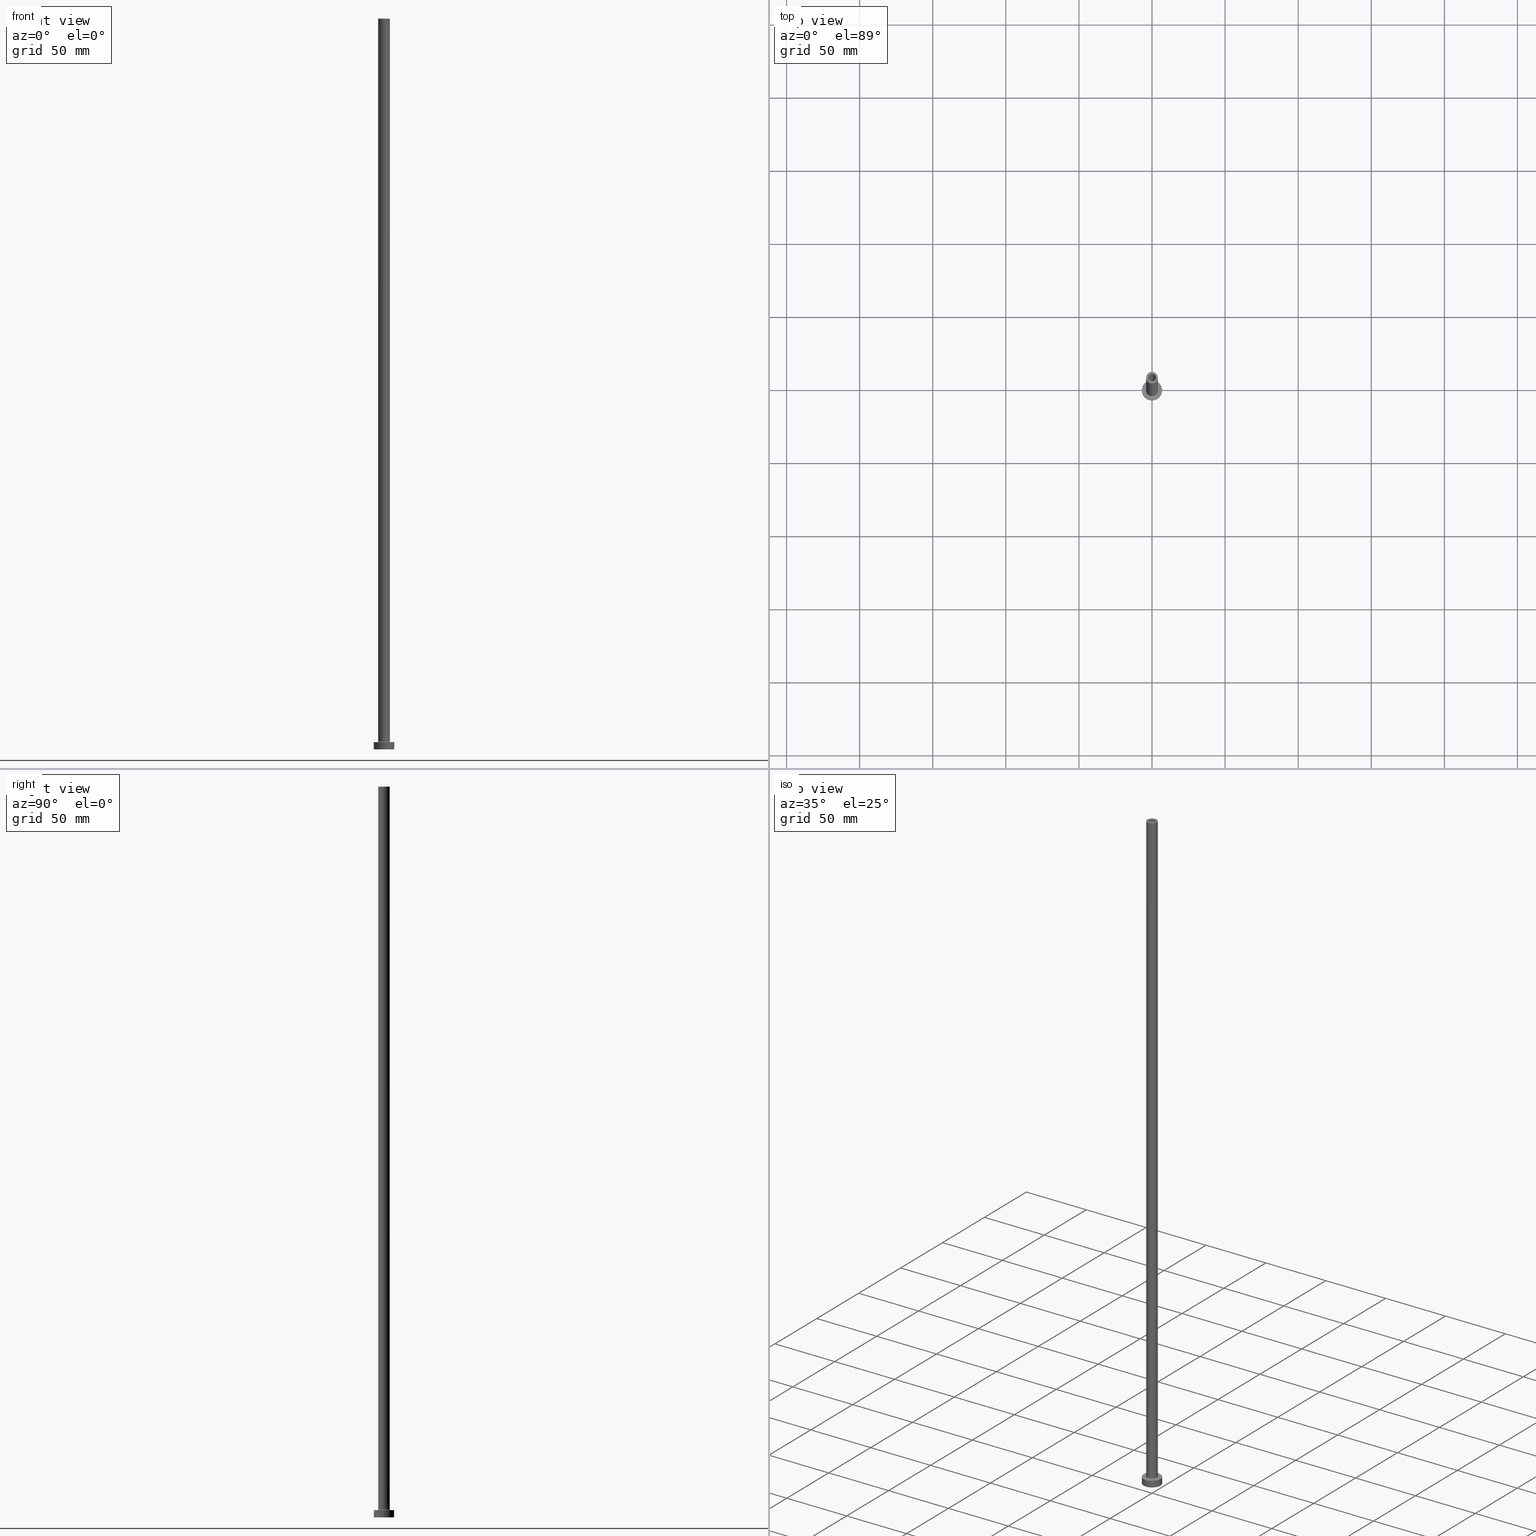
[diagram: canonical four-view strip — front | top / right | iso, engineering-drawing reading convention]
A machine part, canonical four-view strip (front | top / right | iso — engineering-drawing reading convention). The complete STEP part file that produces these views, byte-faithful:
ISO-10303-21;
HEADER;
FILE_DESCRIPTION (( 'STEP AP203' ),
    '1' );
FILE_NAME ('65d1.STEP',
    '2023-02-13T16:28:41',
    ( '' ),
    ( '' ),
    'SwSTEP 2.0',
    'SolidWorks 2019',
    '' );
FILE_SCHEMA (( 'CONFIG_CONTROL_DESIGN' ));
ENDSEC;

DATA;
#1 = EDGE_CURVE ( 'NONE', #309, #140, #42, .T. ) ;
#2 = CARTESIAN_POINT ( 'NONE',  ( 0.000000000000000000, 0.000000000000000000, 455.0000000000000000 ) ) ;
#3 = CARTESIAN_POINT ( 'NONE',  ( 0.000000000000000000, 0.000000000000000000, 500.0000000000000000 ) ) ;
#4 = CC_DESIGN_APPROVAL ( #315, ( #286 ) ) ;
#5 = AXIS2_PLACEMENT_3D ( 'NONE', #387, #212, #395 ) ;
#6 = APPROVAL_DATE_TIME ( #114, #89 ) ;
#7 = CARTESIAN_POINT ( 'NONE',  ( -2.600000000000000089, 0.000000000000000000, 455.0000000000000000 ) ) ;
#8 = VERTEX_POINT ( 'NONE', #458 ) ;
#9 = DIRECTION ( 'NONE',  ( 0.000000000000000000, 0.000000000000000000, 1.000000000000000000 ) ) ;
#10 = DESIGN_CONTEXT ( 'detailed design', #323, 'design' ) ;
#11 = CIRCLE ( 'NONE', #328, 2.600000000000000089 ) ;
#12 = COORDINATED_UNIVERSAL_TIME_OFFSET ( 1, 0, .AHEAD. ) ;
#13 = PLANE ( 'NONE',  #119 ) ;
#14 = EDGE_CURVE ( 'NONE', #39, #447, #172, .T. ) ;
#15 = ORIENTED_EDGE ( 'NONE', *, *, #406, .F. ) ;
#16 = ORIENTED_EDGE ( 'NONE', *, *, #21, .F. ) ;
#17 = DIRECTION ( 'NONE',  ( -1.000000000000000000, 0.000000000000000000, 0.000000000000000000 ) ) ;
#18 = ADVANCED_FACE ( 'NONE', ( #207 ), #211, .F. ) ;
#19 = DIRECTION ( 'NONE',  ( -1.000000000000000000, 0.000000000000000000, 0.000000000000000000 ) ) ;
#20 = FACE_BOUND ( 'NONE', #138, .T. ) ;
#21 = EDGE_CURVE ( 'NONE', #8, #344, #436, .T. ) ;
#22 = AXIS2_PLACEMENT_3D ( 'NONE', #343, #204, #388 ) ;
#23 = AXIS2_PLACEMENT_3D ( 'NONE', #362, #370, #226 ) ;
#24 = ORIENTED_EDGE ( 'NONE', *, *, #171, .F. ) ;
#25 = ORIENTED_EDGE ( 'NONE', *, *, #428, .T. ) ;
#26 = ADVANCED_FACE ( 'NONE', ( #288 ), #94, .F. ) ;
#27 = DIRECTION ( 'NONE',  ( 0.000000000000000000, 0.000000000000000000, 1.000000000000000000 ) ) ;
#28 = VECTOR ( 'NONE', #237, 1000.000000000000000 ) ;
#29 = DIRECTION ( 'NONE',  ( 1.000000000000000000, 0.000000000000000000, -0.000000000000000000 ) ) ;
#30 = VECTOR ( 'NONE', #194, 1000.000000000000000 ) ;
#31 = ORIENTED_EDGE ( 'NONE', *, *, #87, .F. ) ;
#32 = DIRECTION ( 'NONE',  ( 0.000000000000000000, 0.000000000000000000, -1.000000000000000000 ) ) ;
#33 = ORIENTED_EDGE ( 'NONE', *, *, #21, .T. ) ;
#34 = DIRECTION ( 'NONE',  ( 0.000000000000000000, -1.000000000000000000, 0.000000000000000000 ) ) ;
#35 = CYLINDRICAL_SURFACE ( 'NONE', #227, 4.000000000000000000 ) ;
#36 = ORIENTED_EDGE ( 'NONE', *, *, #407, .T. ) ;
#37 = CC_DESIGN_PERSON_AND_ORGANIZATION_ASSIGNMENT ( #403, #368, ( #159 ) ) ;
#38 = DIRECTION ( 'NONE',  ( 0.000000000000000000, 0.000000000000000000, -1.000000000000000000 ) ) ;
#39 = VERTEX_POINT ( 'NONE', #374 ) ;
#40 = CALENDAR_DATE ( 2023, 13, 2 ) ;
#41 = VECTOR ( 'NONE', #357, 1000.000000000000000 ) ;
#42 = CIRCLE ( 'NONE', #426, 2.750000000000000000 ) ;
#43 = ORIENTED_EDGE ( 'NONE', *, *, #79, .F. ) ;
#44 = MECHANICAL_CONTEXT ( 'NONE', #192, 'mechanical' ) ;
#45 = DATE_TIME_ROLE ( 'creation_date' ) ;
#46 = SECURITY_CLASSIFICATION_LEVEL ( 'unclassified' ) ;
#47 = ORGANIZATION ( 'NEUR�EN�', 'NEUR�EN�', '' ) ;
#48 = AXIS2_PLACEMENT_3D ( 'NONE', #310, #34, #38 ) ;
#49 = PERSON_AND_ORGANIZATION ( #156, #47 ) ;
#50 = ORIENTED_EDGE ( 'NONE', *, *, #81, .T. ) ;
#51 = ORIENTED_EDGE ( 'NONE', *, *, #87, .T. ) ;
#52 = AXIS2_PLACEMENT_3D ( 'NONE', #3, #27, #29 ) ;
#53 = CARTESIAN_POINT ( 'NONE',  ( 7.000000000000000000, 8.572527594031473190E-16, 5.000000000000000000 ) ) ;
#54 = PLANE ( 'NONE',  #235 ) ;
#55 = DIRECTION ( 'NONE',  ( 1.000000000000000000, 0.000000000000000000, 0.000000000000000000 ) ) ;
#56 = DIRECTION ( 'NONE',  ( -0.000000000000000000, -0.000000000000000000, -1.000000000000000000 ) ) ;
#57 = EDGE_LOOP ( 'NONE', ( #432, #16 ) ) ;
#58 = AXIS2_PLACEMENT_3D ( 'NONE', #355, #316, #128 ) ;
#59 = CARTESIAN_POINT ( 'NONE',  ( 2.600000000000000089, 3.184081677783117698E-16, 500.0000000000000000 ) ) ;
#60 = MANIFOLD_SOLID_BREP ( 'Odebrat vysunut�m4', #144 ) ;
#61 = DIRECTION ( 'NONE',  ( 1.000000000000000000, 0.000000000000000000, 0.000000000000000000 ) ) ;
#62 = CARTESIAN_POINT ( 'NONE',  ( 7.000000000000000000, 8.572527594031473190E-16, 5.000000000000000000 ) ) ;
#63 = FACE_BOUND ( 'NONE', #399, .T. ) ;
#64 = ORIENTED_EDGE ( 'NONE', *, *, #255, .F. ) ;
#65 = FACE_BOUND ( 'NONE', #102, .T. ) ;
#66 = AXIS2_PLACEMENT_3D ( 'NONE', #263, #228, #19 ) ;
#67 = CARTESIAN_POINT ( 'NONE',  ( 0.000000000000000000, 0.000000000000000000, 5.000000000000000000 ) ) ;
#68 = CIRCLE ( 'NONE', #149, 7.000000000000000000 ) ;
#69 = VERTEX_POINT ( 'NONE', #77 ) ;
#70 = DIRECTION ( 'NONE',  ( -0.000000000000000000, -0.000000000000000000, -1.000000000000000000 ) ) ;
#71 = ADVANCED_FACE ( 'NONE', ( #256 ), #154, .T. ) ;
#72 = DIRECTION ( 'NONE',  ( -0.000000000000000000, -0.000000000000000000, -1.000000000000000000 ) ) ;
#73 = APPROVAL_STATUS ( 'not_yet_approved' ) ;
#74 = ORIENTED_EDGE ( 'NONE', *, *, #98, .F. ) ;
#75 = ADVANCED_FACE ( 'NONE', ( #91, #160 ), #13, .F. ) ;
#76 = EDGE_LOOP ( 'NONE', ( #248, #50, #456, #363 ) ) ;
#77 = CARTESIAN_POINT ( 'NONE',  ( -7.000000000000000000, 0.000000000000000000, 5.000000000000000000 ) ) ;
#78 =( NAMED_UNIT ( * ) SI_UNIT ( $, .STERADIAN. ) SOLID_ANGLE_UNIT ( ) );
#79 = EDGE_CURVE ( 'NONE', #205, #260, #133, .T. ) ;
#80 = PERSON_AND_ORGANIZATION ( #156, #47 ) ;
#81 = EDGE_CURVE ( 'NONE', #354, #224, #158, .T. ) ;
#82 = VECTOR ( 'NONE', #32, 1000.000000000000000 ) ;
#83 = CIRCLE ( 'NONE', #127, 2.600000000000000089 ) ;
#84 = VERTEX_POINT ( 'NONE', #53 ) ;
#85 = LINE ( 'NONE', #230, #30 ) ;
#86 = CARTESIAN_POINT ( 'NONE',  ( 0.000000000000000000, 0.000000000000000000, 462.7781745930519719 ) ) ;
#87 = EDGE_CURVE ( 'NONE', #84, #69, #68, .T. ) ;
#88 = CARTESIAN_POINT ( 'NONE',  ( 0.000000000000000000, 0.000000000000000000, 5.000000000000000000 ) ) ;
#89 = APPROVAL ( #179, 'NEUR�EN�' ) ;
#90 = DIRECTION ( 'NONE',  ( 0.000000000000000000, 0.000000000000000000, 1.000000000000000000 ) ) ;
#91 = FACE_BOUND ( 'NONE', #113, .T. ) ;
#92 = ORIENTED_EDGE ( 'NONE', *, *, #451, .T. ) ;
#93 = ORIENTED_EDGE ( 'NONE', *, *, #79, .T. ) ;
#94 = CYLINDRICAL_SURFACE ( 'NONE', #208, 2.750000000000000000 ) ;
#95 = VERTEX_POINT ( 'NONE', #161 ) ;
#96 = VERTEX_POINT ( 'NONE', #294 ) ;
#97 = AXIS2_PLACEMENT_3D ( 'NONE', #283, #169, #348 ) ;
#98 = EDGE_CURVE ( 'NONE', #453, #260, #125, .T. ) ;
#99 = CARTESIAN_POINT ( 'NONE',  ( 2.750000000000000000, 3.367778697655221012E-16, 462.7781745930519719 ) ) ;
#100 = CARTESIAN_POINT ( 'NONE',  ( 0.000000000000000000, 0.000000000000000000, 500.0000000000000000 ) ) ;
#101 = DIRECTION ( 'NONE',  ( 1.000000000000000000, 0.000000000000000000, -0.000000000000000000 ) ) ;
#102 = EDGE_LOOP ( 'NONE', ( #234, #404 ) ) ;
#103 = LINE ( 'NONE', #243, #28 ) ;
#104 = CARTESIAN_POINT ( 'NONE',  ( -2.750000000000000000, 0.000000000000000000, 455.0000000000000000 ) ) ;
#105 = CARTESIAN_POINT ( 'NONE',  ( -7.000000000000000000, 0.000000000000000000, 5.000000000000000000 ) ) ;
#106 = CIRCLE ( 'NONE', #367, 7.000000000000000000 ) ;
#107 = DIRECTION ( 'NONE',  ( 1.000000000000000000, 0.000000000000000000, 0.000000000000000000 ) ) ;
#108 = DIRECTION ( 'NONE',  ( 1.000000000000000000, 0.000000000000000000, -0.000000000000000000 ) ) ;
#109 = ORIENTED_EDGE ( 'NONE', *, *, #117, .T. ) ;
#110 = CARTESIAN_POINT ( 'NONE',  ( 0.000000000000000000, 0.000000000000000000, 500.0000000000000000 ) ) ;
#111 = DIRECTION ( 'NONE',  ( 0.000000000000000000, 0.000000000000000000, 1.000000000000000000 ) ) ;
#112 = EDGE_CURVE ( 'NONE', #224, #140, #85, .T. ) ;
#113 = EDGE_LOOP ( 'NONE', ( #277, #238 ) ) ;
#114 = DATE_AND_TIME ( #321, #249 ) ;
#115 = COORDINATED_UNIVERSAL_TIME_OFFSET ( 1, 0, .AHEAD. ) ;
#116 = APPROVAL_ROLE ( '' ) ;
#117 = EDGE_CURVE ( 'NONE', #166, #205, #167, .T. ) ;
#118 = PERSON_AND_ORGANIZATION_ROLE ( 'design_supplier' ) ;
#119 = AXIS2_PLACEMENT_3D ( 'NONE', #254, #218, #108 ) ;
#120 = DIRECTION ( 'NONE',  ( -0.000000000000000000, -0.000000000000000000, -1.000000000000000000 ) ) ;
#121 = CARTESIAN_POINT ( 'NONE',  ( 0.000000000000000000, 0.000000000000000000, 5.500000000000005329 ) ) ;
#122 = ORIENTED_EDGE ( 'NONE', *, *, #396, .F. ) ;
#123 = CC_DESIGN_DATE_AND_TIME_ASSIGNMENT ( #325, #152, ( #452 ) ) ;
#124 = CYLINDRICAL_SURFACE ( 'NONE', #66, 7.000000000000000000 ) ;
#125 = LINE ( 'NONE', #299, #410 ) ;
#126 = CIRCLE ( 'NONE', #435, 0.5000000000000004441 ) ;
#127 = AXIS2_PLACEMENT_3D ( 'NONE', #110, #351, #356 ) ;
#128 = DIRECTION ( 'NONE',  ( -1.000000000000000000, 0.000000000000000000, 0.000000000000000000 ) ) ;
#129 = LINE ( 'NONE', #99, #82 ) ;
#130 = VECTOR ( 'NONE', #72, 1000.000000000000000 ) ;
#131 = DIRECTION ( 'NONE',  ( -0.000000000000000000, -0.000000000000000000, -1.000000000000000000 ) ) ;
#132 = DIRECTION ( 'NONE',  ( -1.000000000000000000, 0.000000000000000000, 0.000000000000000000 ) ) ;
#133 = CIRCLE ( 'NONE', #23, 2.600000000000000089 ) ;
#134 = CARTESIAN_POINT ( 'NONE',  ( 0.000000000000000000, 0.000000000000000000, 0.000000000000000000 ) ) ;
#135 = ORIENTED_EDGE ( 'NONE', *, *, #446, .T. ) ;
#136 = CARTESIAN_POINT ( 'NONE',  ( 0.000000000000000000, 0.000000000000000000, 5.000000000000000000 ) ) ;
#137 = CARTESIAN_POINT ( 'NONE',  ( 0.000000000000000000, 0.000000000000000000, 0.000000000000000000 ) ) ;
#138 = EDGE_LOOP ( 'NONE', ( #93, #253 ) ) ;
#139 = DIRECTION ( 'NONE',  ( -0.000000000000000000, -0.000000000000000000, -1.000000000000000000 ) ) ;
#140 = VERTEX_POINT ( 'NONE', #295 ) ;
#141 = ADVANCED_FACE ( 'NONE', ( #165 ), #440, .T. ) ;
#142 = LOCAL_TIME ( 17, 28, 41.00000000000000000, #12 ) ;
#143 = DIRECTION ( 'NONE',  ( -0.000000000000000000, -0.000000000000000000, -1.000000000000000000 ) ) ;
#144 = CLOSED_SHELL ( 'NONE', ( #18, #379, #153, #266, #141, #259, #215, #75, #71, #360, #229, #26, #223, #145 ) ) ;
#145 = ADVANCED_FACE ( 'NONE', ( #273 ), #417, .F. ) ;
#146 = DIRECTION ( 'NONE',  ( 0.000000000000000000, 0.000000000000000000, 1.000000000000000000 ) ) ;
#147 = PERSON_AND_ORGANIZATION ( #156, #47 ) ;
#148 = CIRCLE ( 'NONE', #335, 2.600000000000000089 ) ;
#149 = AXIS2_PLACEMENT_3D ( 'NONE', #445, #439, #55 ) ;
#150 = EDGE_CURVE ( 'NONE', #453, #166, #83, .T. ) ;
#151 = ORIENTED_EDGE ( 'NONE', *, *, #324, .F. ) ;
#152 = DATE_TIME_ROLE ( 'classification_date' ) ;
#153 = ADVANCED_FACE ( 'NONE', ( #168 ), #416, .F. ) ;
#154 = CYLINDRICAL_SURFACE ( 'NONE', #414, 4.000000000000000000 ) ;
#155 = PERSON_AND_ORGANIZATION ( #156, #47 ) ;
#156 = PERSON ( 'NEUR�EN�', 'NEUR�EN�', 'NEUR�EN�', ('NEUR�EN�'), ('NEUR�EN�'), ('NEUR�EN�') ) ;
#157 = LOCAL_TIME ( 17, 28, 41.00000000000000000, #115 ) ;
#158 = CIRCLE ( 'NONE', #306, 2.750000000000000000 ) ;
#159 = PRODUCT_DEFINITION ( 'NEZN�M�', '', #286, #10 ) ;
#160 = FACE_OUTER_BOUND ( 'NONE', #57, .T. ) ;
#161 = CARTESIAN_POINT ( 'NONE',  ( 4.000000000000000000, 4.898587196589412829E-16, 5.500000000000005329 ) ) ;
#162 = EDGE_LOOP ( 'NONE', ( #201, #92, #210, #151 ) ) ;
#163 = CC_DESIGN_APPROVAL ( #89, ( #452 ) ) ;
#164 = CARTESIAN_POINT ( 'NONE',  ( 0.000000000000000000, 0.000000000000000000, 5.000000000000000000 ) ) ;
#165 = FACE_OUTER_BOUND ( 'NONE', #198, .T. ) ;
#166 = VERTEX_POINT ( 'NONE', #303 ) ;
#167 = LINE ( 'NONE', #413, #329 ) ;
#168 = FACE_OUTER_BOUND ( 'NONE', #408, .T. ) ;
#169 = DIRECTION ( 'NONE',  ( 0.000000000000000000, 0.000000000000000000, 1.000000000000000000 ) ) ;
#170 = CC_DESIGN_APPROVAL ( #290, ( #159 ) ) ;
#171 = EDGE_CURVE ( 'NONE', #447, #39, #197, .T. ) ;
#172 = CIRCLE ( 'NONE', #291, 4.500000000000000888 ) ;
#173 = FACE_OUTER_BOUND ( 'NONE', #345, .T. ) ;
#174 = ORIENTED_EDGE ( 'NONE', *, *, #377, .T. ) ;
#175 = CARTESIAN_POINT ( 'NONE',  ( 0.000000000000000000, 0.000000000000000000, 5.500000000000005329 ) ) ;
#176 = ORIENTED_EDGE ( 'NONE', *, *, #300, .T. ) ;
#177 = ORIENTED_EDGE ( 'NONE', *, *, #406, .T. ) ;
#178 = CARTESIAN_POINT ( 'NONE',  ( 4.000000000000000000, 4.898587196589412829E-16, 500.0000000000000000 ) ) ;
#179 = APPROVAL_STATUS ( 'not_yet_approved' ) ;
#180 = CIRCLE ( 'NONE', #431, 4.000000000000000000 ) ;
#181 = CARTESIAN_POINT ( 'NONE',  ( 0.000000000000000000, 0.000000000000000000, 500.0000000000000000 ) ) ;
#182 = APPROVAL_ROLE ( '' ) ;
#183 = UNCERTAINTY_MEASURE_WITH_UNIT (LENGTH_MEASURE( 1.000000000000000082E-05 ), #302, 'distance_accuracy_value', 'NONE');
#184 = PERSON_AND_ORGANIZATION_ROLE ( 'classification_officer' ) ;
#185 = AXIS2_PLACEMENT_3D ( 'NONE', #134, #143, #346 ) ;
#186 = AXIS2_PLACEMENT_3D ( 'NONE', #100, #412, #132 ) ;
#187 = PERSON_AND_ORGANIZATION ( #156, #47 ) ;
#188 = DIRECTION ( 'NONE',  ( 1.000000000000000000, 0.000000000000000000, 0.000000000000000000 ) ) ;
#189 = EDGE_CURVE ( 'NONE', #95, #447, #444, .T. ) ;
#190 = CARTESIAN_POINT ( 'NONE',  ( 2.600000000000000089, 3.184081677783117698E-16, 455.0000000000000000 ) ) ;
#191 = AXIS2_PLACEMENT_3D ( 'NONE', #405, #146, #220 ) ;
#192 = APPLICATION_CONTEXT ( 'configuration controlled 3d designs of mechanical parts and assemblies' ) ;
#193 = ORIENTED_EDGE ( 'NONE', *, *, #150, .T. ) ;
#194 = DIRECTION ( 'NONE',  ( 0.000000000000000000, 0.000000000000000000, -1.000000000000000000 ) ) ;
#195 = EDGE_CURVE ( 'NONE', #375, #389, #298, .T. ) ;
#196 = CIRCLE ( 'NONE', #185, 2.750000000000000000 ) ;
#197 = CIRCLE ( 'NONE', #5, 4.500000000000000888 ) ;
#198 = EDGE_LOOP ( 'NONE', ( #31, #241, #33, #15 ) ) ;
#199 = DIRECTION ( 'NONE',  ( 0.000000000000000000, 0.000000000000000000, 1.000000000000000000 ) ) ;
#200 = ORIENTED_EDGE ( 'NONE', *, *, #377, .F. ) ;
#201 = ORIENTED_EDGE ( 'NONE', *, *, #195, .F. ) ;
#202 = DIRECTION ( 'NONE',  ( 0.000000000000000000, 0.000000000000000000, 1.000000000000000000 ) ) ;
#203 = CC_DESIGN_PERSON_AND_ORGANIZATION_ASSIGNMENT ( #434, #184, ( #452 ) ) ;
#204 = DIRECTION ( 'NONE',  ( 0.000000000000000000, 0.000000000000000000, 1.000000000000000000 ) ) ;
#205 = VERTEX_POINT ( 'NONE', #7 ) ;
#206 = APPROVAL_PERSON_ORGANIZATION ( #187, #89, #182 ) ;
#207 = FACE_OUTER_BOUND ( 'NONE', #216, .T. ) ;
#208 = AXIS2_PLACEMENT_3D ( 'NONE', #86, #372, #17 ) ;
#209 = CARTESIAN_POINT ( 'NONE',  ( 0.000000000000000000, 0.000000000000000000, 500.0000000000000000 ) ) ;
#210 = ORIENTED_EDGE ( 'NONE', *, *, #352, .T. ) ;
#211 = CYLINDRICAL_SURFACE ( 'NONE', #58, 2.600000000000000089 ) ;
#212 = DIRECTION ( 'NONE',  ( -0.000000000000000000, -0.000000000000000000, -1.000000000000000000 ) ) ;
#213 = PLANE ( 'NONE',  #52 ) ;
#214 = APPROVAL_ROLE ( '' ) ;
#215 = ADVANCED_FACE ( 'NONE', ( #65, #337 ), #54, .T. ) ;
#216 = EDGE_LOOP ( 'NONE', ( #25, #275, #43, #280 ) ) ;
#217 =( NAMED_UNIT ( * ) PLANE_ANGLE_UNIT ( ) SI_UNIT ( $, .RADIAN. ) );
#218 = DIRECTION ( 'NONE',  ( 0.000000000000000000, 0.000000000000000000, 1.000000000000000000 ) ) ;
#219 = COORDINATED_UNIVERSAL_TIME_OFFSET ( 1, 0, .AHEAD. ) ;
#220 = DIRECTION ( 'NONE',  ( 1.000000000000000000, 0.000000000000000000, 0.000000000000000000 ) ) ;
#221 = CALENDAR_DATE ( 2023, 13, 2 ) ;
#222 = CARTESIAN_POINT ( 'NONE',  ( 0.000000000000000000, 0.000000000000000000, 455.0000000000000000 ) ) ;
#223 = ADVANCED_FACE ( 'NONE', ( #20, #296 ), #441, .F. ) ;
#224 = VERTEX_POINT ( 'NONE', #104 ) ;
#225 = ORIENTED_EDGE ( 'NONE', *, *, #300, .F. ) ;
#226 = DIRECTION ( 'NONE',  ( 1.000000000000000000, 0.000000000000000000, 0.000000000000000000 ) ) ;
#227 = AXIS2_PLACEMENT_3D ( 'NONE', #307, #139, #244 ) ;
#228 = DIRECTION ( 'NONE',  ( -0.000000000000000000, -0.000000000000000000, -1.000000000000000000 ) ) ;
#229 = ADVANCED_FACE ( 'NONE', ( #242 ), #320, .F. ) ;
#230 = CARTESIAN_POINT ( 'NONE',  ( -2.750000000000000000, 0.000000000000000000, 462.7781745930519719 ) ) ;
#231 = EDGE_CURVE ( 'NONE', #389, #375, #180, .T. ) ;
#232 = ORIENTED_EDGE ( 'NONE', *, *, #189, .F. ) ;
#233 = CARTESIAN_POINT ( 'NONE',  ( 0.000000000000000000, 0.000000000000000000, 0.000000000000000000 ) ) ;
#234 = ORIENTED_EDGE ( 'NONE', *, *, #171, .T. ) ;
#235 = AXIS2_PLACEMENT_3D ( 'NONE', #164, #90, #373 ) ;
#236 = PRODUCT_DEFINITION_SHAPE ( 'NONE', 'NONE',  #159 ) ;
#237 = DIRECTION ( 'NONE',  ( -0.000000000000000000, -0.000000000000000000, -1.000000000000000000 ) ) ;
#238 = ORIENTED_EDGE ( 'NONE', *, *, #1, .F. ) ;
#239 = CC_DESIGN_PERSON_AND_ORGANIZATION_ASSIGNMENT ( #155, #285, ( #322 ) ) ;
#240 = DIRECTION ( 'NONE',  ( 1.000000000000000000, 0.000000000000000000, 0.000000000000000000 ) ) ;
#241 = ORIENTED_EDGE ( 'NONE', *, *, #396, .T. ) ;
#242 = FACE_OUTER_BOUND ( 'NONE', #333, .T. ) ;
#243 = CARTESIAN_POINT ( 'NONE',  ( -4.000000000000000000, 0.000000000000000000, 500.0000000000000000 ) ) ;
#244 = DIRECTION ( 'NONE',  ( -1.000000000000000000, 0.000000000000000000, 0.000000000000000000 ) ) ;
#245 = CIRCLE ( 'NONE', #297, 7.000000000000000000 ) ;
#246 = LINE ( 'NONE', #394, #130 ) ;
#247 = DIRECTION ( 'NONE',  ( 1.000000000000000000, 0.000000000000000000, 0.000000000000000000 ) ) ;
#248 = ORIENTED_EDGE ( 'NONE', *, *, #446, .F. ) ;
#249 = LOCAL_TIME ( 17, 28, 41.00000000000000000, #430 ) ;
#250 = CALENDAR_DATE ( 2023, 13, 2 ) ;
#251 = ORIENTED_EDGE ( 'NONE', *, *, #352, .F. ) ;
#252 = PERSON_AND_ORGANIZATION_ROLE ( 'creator' ) ;
#253 = ORIENTED_EDGE ( 'NONE', *, *, #255, .T. ) ;
#254 = CARTESIAN_POINT ( 'NONE',  ( 0.000000000000000000, 0.000000000000000000, 0.000000000000000000 ) ) ;
#255 = EDGE_CURVE ( 'NONE', #260, #205, #148, .T. ) ;
#256 = FACE_OUTER_BOUND ( 'NONE', #358, .T. ) ;
#257 = DIRECTION ( 'NONE',  ( 1.000000000000000000, 0.000000000000000000, 0.000000000000000000 ) ) ;
#258 = AXIS2_PLACEMENT_3D ( 'NONE', #2, #459, #101 ) ;
#259 = ADVANCED_FACE ( 'NONE', ( #371 ), #124, .T. ) ;
#260 = VERTEX_POINT ( 'NONE', #190 ) ;
#261 = ORIENTED_EDGE ( 'NONE', *, *, #112, .F. ) ;
#262 = DIRECTION ( 'NONE',  ( 0.000000000000000000, 0.000000000000000000, 1.000000000000000000 ) ) ;
#263 = CARTESIAN_POINT ( 'NONE',  ( 0.000000000000000000, 0.000000000000000000, 5.000000000000000000 ) ) ;
#264 = VECTOR ( 'NONE', #420, 1000.000000000000000 ) ;
#265 = DIRECTION ( 'NONE',  ( 0.000000000000000000, 0.000000000000000000, -1.000000000000000000 ) ) ;
#266 = ADVANCED_FACE ( 'NONE', ( #437 ), #35, .T. ) ;
#267 = AXIS2_PLACEMENT_3D ( 'NONE', #233, #342, #334 ) ;
#268 = EDGE_CURVE ( 'NONE', #140, #309, #196, .T. ) ;
#269 = CARTESIAN_POINT ( 'NONE',  ( -7.000000000000000000, 0.000000000000000000, 0.000000000000000000 ) ) ;
#270 =( GEOMETRIC_REPRESENTATION_CONTEXT ( 3 ) GLOBAL_UNCERTAINTY_ASSIGNED_CONTEXT ( ( #183 ) ) GLOBAL_UNIT_ASSIGNED_CONTEXT ( ( #302, #217, #78 ) ) REPRESENTATION_CONTEXT ( 'NONE', 'WORKASPACE' ) );
#271 = EDGE_LOOP ( 'NONE', ( #122, #292, #177, #332 ) ) ;
#272 = CARTESIAN_POINT ( 'NONE',  ( 0.000000000000000000, 0.000000000000000000, 0.000000000000000000 ) ) ;
#273 = FACE_OUTER_BOUND ( 'NONE', #326, .T. ) ;
#274 = CARTESIAN_POINT ( 'NONE',  ( 0.000000000000000000, 0.000000000000000000, 5.500000000000005329 ) ) ;
#275 = ORIENTED_EDGE ( 'NONE', *, *, #98, .T. ) ;
#276 = DIRECTION ( 'NONE',  ( 1.224646799147353207E-16, 1.000000000000000000, -0.000000000000000000 ) ) ;
#277 = ORIENTED_EDGE ( 'NONE', *, *, #268, .F. ) ;
#278 = CARTESIAN_POINT ( 'NONE',  ( -4.500000000000000888, 5.510910596163089556E-16, 5.500000000000005329 ) ) ;
#279 = LINE ( 'NONE', #105, #41 ) ;
#280 = ORIENTED_EDGE ( 'NONE', *, *, #117, .F. ) ;
#281 = AXIS2_PLACEMENT_3D ( 'NONE', #318, #422, #415 ) ;
#282 = DIRECTION ( 'NONE',  ( 0.000000000000000000, 0.000000000000000000, 1.000000000000000000 ) ) ;
#283 = CARTESIAN_POINT ( 'NONE',  ( 0.000000000000000000, 0.000000000000000000, 5.500000000000005329 ) ) ;
#284 = APPROVAL_DATE_TIME ( #330, #315 ) ;
#285 = PERSON_AND_ORGANIZATION_ROLE ( 'design_owner' ) ;
#286 = PRODUCT_DEFINITION_FORMATION_WITH_SPECIFIED_SOURCE ( 'LIBOVOLN�', '', #322, .NOT_KNOWN. ) ;
#287 = APPLICATION_PROTOCOL_DEFINITION ( 'international standard', 'config_control_design', 1994, #192 ) ;
#288 = FACE_OUTER_BOUND ( 'NONE', #76, .T. ) ;
#289 = APPLICATION_PROTOCOL_DEFINITION ( 'international standard', 'config_control_design', 1994, #323 ) ;
#290 = APPROVAL ( #73, 'NEUR�EN�' ) ;
#291 = AXIS2_PLACEMENT_3D ( 'NONE', #136, #70, #421 ) ;
#292 = ORIENTED_EDGE ( 'NONE', *, *, #407, .F. ) ;
#293 = ORIENTED_EDGE ( 'NONE', *, *, #231, .F. ) ;
#294 = CARTESIAN_POINT ( 'NONE',  ( -4.000000000000000000, 0.000000000000000000, 5.500000000000005329 ) ) ;
#295 = CARTESIAN_POINT ( 'NONE',  ( -2.750000000000000000, 0.000000000000000000, 0.000000000000000000 ) ) ;
#296 = FACE_OUTER_BOUND ( 'NONE', #350, .T. ) ;
#297 = AXIS2_PLACEMENT_3D ( 'NONE', #137, #391, #107 ) ;
#298 = CIRCLE ( 'NONE', #340, 4.000000000000000000 ) ;
#299 = CARTESIAN_POINT ( 'NONE',  ( 2.600000000000000089, 3.184081677783117698E-16, 500.0000000000000000 ) ) ;
#300 = EDGE_CURVE ( 'NONE', #224, #354, #361, .T. ) ;
#301 = CC_DESIGN_PERSON_AND_ORGANIZATION_ASSIGNMENT ( #327, #252, ( #286 ) ) ;
#302 =( LENGTH_UNIT ( ) NAMED_UNIT ( * ) SI_UNIT ( .MILLI., .METRE. ) );
#303 = CARTESIAN_POINT ( 'NONE',  ( -2.600000000000000089, 0.000000000000000000, 500.0000000000000000 ) ) ;
#304 = ORIENTED_EDGE ( 'NONE', *, *, #150, .F. ) ;
#305 = CARTESIAN_POINT ( 'NONE',  ( -4.000000000000000000, 0.000000000000000000, 500.0000000000000000 ) ) ;
#306 = AXIS2_PLACEMENT_3D ( 'NONE', #338, #448, #376 ) ;
#307 = CARTESIAN_POINT ( 'NONE',  ( 0.000000000000000000, 0.000000000000000000, 500.0000000000000000 ) ) ;
#308 = EDGE_CURVE ( 'NONE', #96, #39, #126, .T. ) ;
#309 = VERTEX_POINT ( 'NONE', #384 ) ;
#310 = CARTESIAN_POINT ( 'NONE',  ( 4.500000000000000888, 0.000000000000000000, 5.500000000000005329 ) ) ;
#311 = ORIENTED_EDGE ( 'NONE', *, *, #195, .T. ) ;
#312 = CARTESIAN_POINT ( 'NONE',  ( 2.750000000000000000, 3.367778697655221012E-16, 455.0000000000000000 ) ) ;
#313 = EDGE_CURVE ( 'NONE', #344, #8, #245, .T. ) ;
#314 = ORIENTED_EDGE ( 'NONE', *, *, #1, .T. ) ;
#315 = APPROVAL ( #331, 'NEUR�EN�' ) ;
#316 = DIRECTION ( 'NONE',  ( 0.000000000000000000, 0.000000000000000000, -1.000000000000000000 ) ) ;
#317 = DIRECTION ( 'NONE',  ( 0.000000000000000000, 0.000000000000000000, 1.000000000000000000 ) ) ;
#318 = CARTESIAN_POINT ( 'NONE',  ( 0.000000000000000000, 0.000000000000000000, 462.7781745930519719 ) ) ;
#319 = LOCAL_TIME ( 17, 28, 41.00000000000000000, #400 ) ;
#320 = TOROIDAL_SURFACE ( 'NONE', #381, 4.500000000000000888, 0.5000000000000000000 ) ;
#321 = CALENDAR_DATE ( 2023, 13, 2 ) ;
#322 = PRODUCT ( '65d1', '65d1', '', ( #44 ) ) ;
#323 = APPLICATION_CONTEXT ( 'configuration controlled 3d designs of mechanical parts and assemblies' ) ;
#324 = EDGE_CURVE ( 'NONE', #389, #96, #103, .T. ) ;
#325 = DATE_AND_TIME ( #397, #142 ) ;
#326 = EDGE_LOOP ( 'NONE', ( #74, #193, #109, #64 ) ) ;
#327 = PERSON_AND_ORGANIZATION ( #156, #47 ) ;
#328 = AXIS2_PLACEMENT_3D ( 'NONE', #209, #202, #353 ) ;
#329 = VECTOR ( 'NONE', #450, 1000.000000000000000 ) ;
#330 = DATE_AND_TIME ( #250, #339 ) ;
#331 = APPROVAL_STATUS ( 'not_yet_approved' ) ;
#332 = ORIENTED_EDGE ( 'NONE', *, *, #313, .T. ) ;
#333 = EDGE_LOOP ( 'NONE', ( #341, #251, #380, #443 ) ) ;
#334 = DIRECTION ( 'NONE',  ( 1.000000000000000000, 0.000000000000000000, 0.000000000000000000 ) ) ;
#335 = AXIS2_PLACEMENT_3D ( 'NONE', #222, #262, #257 ) ;
#336 = DIRECTION ( 'NONE',  ( -1.000000000000000000, 0.000000000000000000, 0.000000000000000000 ) ) ;
#337 = FACE_OUTER_BOUND ( 'NONE', #383, .T. ) ;
#338 = CARTESIAN_POINT ( 'NONE',  ( 0.000000000000000000, 0.000000000000000000, 455.0000000000000000 ) ) ;
#339 = LOCAL_TIME ( 17, 28, 41.00000000000000000, #219 ) ;
#340 = AXIS2_PLACEMENT_3D ( 'NONE', #181, #282, #390 ) ;
#341 = ORIENTED_EDGE ( 'NONE', *, *, #308, .F. ) ;
#342 = DIRECTION ( 'NONE',  ( 0.000000000000000000, 0.000000000000000000, 1.000000000000000000 ) ) ;
#343 = CARTESIAN_POINT ( 'NONE',  ( 0.000000000000000000, 0.000000000000000000, 455.0000000000000000 ) ) ;
#344 = VERTEX_POINT ( 'NONE', #269 ) ;
#345 = EDGE_LOOP ( 'NONE', ( #176, #135, #314, #261 ) ) ;
#346 = DIRECTION ( 'NONE',  ( 1.000000000000000000, 0.000000000000000000, 0.000000000000000000 ) ) ;
#347 = ORIENTED_EDGE ( 'NONE', *, *, #308, .T. ) ;
#348 = DIRECTION ( 'NONE',  ( 1.000000000000000000, 0.000000000000000000, 0.000000000000000000 ) ) ;
#349 = APPROVAL_PERSON_ORGANIZATION ( #49, #315, #214 ) ;
#350 = EDGE_LOOP ( 'NONE', ( #225, #386 ) ) ;
#351 = DIRECTION ( 'NONE',  ( 0.000000000000000000, 0.000000000000000000, 1.000000000000000000 ) ) ;
#352 = EDGE_CURVE ( 'NONE', #95, #96, #442, .T. ) ;
#353 = DIRECTION ( 'NONE',  ( 1.000000000000000000, 0.000000000000000000, 0.000000000000000000 ) ) ;
#354 = VERTEX_POINT ( 'NONE', #312 ) ;
#355 = CARTESIAN_POINT ( 'NONE',  ( 0.000000000000000000, 0.000000000000000000, 500.0000000000000000 ) ) ;
#356 = DIRECTION ( 'NONE',  ( 1.000000000000000000, 0.000000000000000000, 0.000000000000000000 ) ) ;
#357 = DIRECTION ( 'NONE',  ( -0.000000000000000000, -0.000000000000000000, -1.000000000000000000 ) ) ;
#358 = EDGE_LOOP ( 'NONE', ( #419, #293, #382, #174 ) ) ;
#359 = DIRECTION ( 'NONE',  ( 1.000000000000000000, 0.000000000000000000, 0.000000000000000000 ) ) ;
#360 = ADVANCED_FACE ( 'NONE', ( #63, #454 ), #213, .T. ) ;
#361 = CIRCLE ( 'NONE', #22, 2.750000000000000000 ) ;
#362 = CARTESIAN_POINT ( 'NONE',  ( 0.000000000000000000, 0.000000000000000000, 455.0000000000000000 ) ) ;
#363 = ORIENTED_EDGE ( 'NONE', *, *, #268, .T. ) ;
#364 = PRODUCT_RELATED_PRODUCT_CATEGORY ( 'detail', '', ( #322 ) ) ;
#365 = DATE_AND_TIME ( #221, #157 ) ;
#366 = APPROVAL_DATE_TIME ( #433, #290 ) ;
#367 = AXIS2_PLACEMENT_3D ( 'NONE', #67, #111, #247 ) ;
#368 = PERSON_AND_ORGANIZATION_ROLE ( 'creator' ) ;
#369 = CARTESIAN_POINT ( 'NONE',  ( 0.000000000000000000, 0.000000000000000000, 500.0000000000000000 ) ) ;
#370 = DIRECTION ( 'NONE',  ( 0.000000000000000000, 0.000000000000000000, 1.000000000000000000 ) ) ;
#371 = FACE_OUTER_BOUND ( 'NONE', #271, .T. ) ;
#372 = DIRECTION ( 'NONE',  ( 0.000000000000000000, 0.000000000000000000, -1.000000000000000000 ) ) ;
#373 = DIRECTION ( 'NONE',  ( 1.000000000000000000, 0.000000000000000000, -0.000000000000000000 ) ) ;
#374 = CARTESIAN_POINT ( 'NONE',  ( -4.500000000000000888, 5.510910596163088569E-16, 5.000000000000002665 ) ) ;
#375 = VERTEX_POINT ( 'NONE', #178 ) ;
#376 = DIRECTION ( 'NONE',  ( 1.000000000000000000, 0.000000000000000000, 0.000000000000000000 ) ) ;
#377 = EDGE_CURVE ( 'NONE', #96, #95, #409, .T. ) ;
#378 = CARTESIAN_POINT ( 'NONE',  ( 0.000000000000000000, 0.000000000000000000, 500.0000000000000000 ) ) ;
#379 = ADVANCED_FACE ( 'NONE', ( #173 ), #460, .F. ) ;
#380 = ORIENTED_EDGE ( 'NONE', *, *, #189, .T. ) ;
#381 = AXIS2_PLACEMENT_3D ( 'NONE', #121, #317, #359 ) ;
#382 = ORIENTED_EDGE ( 'NONE', *, *, #324, .T. ) ;
#383 = EDGE_LOOP ( 'NONE', ( #36, #51 ) ) ;
#384 = CARTESIAN_POINT ( 'NONE',  ( 2.750000000000000000, 3.367778697655221012E-16, 0.000000000000000000 ) ) ;
#385 = ADVANCED_BREP_SHAPE_REPRESENTATION ( '65d1', ( #60, #191 ), #270 ) ;
#386 = ORIENTED_EDGE ( 'NONE', *, *, #81, .F. ) ;
#387 = CARTESIAN_POINT ( 'NONE',  ( 0.000000000000000000, 0.000000000000000000, 5.000000000000000000 ) ) ;
#388 = DIRECTION ( 'NONE',  ( 1.000000000000000000, 0.000000000000000000, 0.000000000000000000 ) ) ;
#389 = VERTEX_POINT ( 'NONE', #305 ) ;
#390 = DIRECTION ( 'NONE',  ( 1.000000000000000000, 0.000000000000000000, 0.000000000000000000 ) ) ;
#391 = DIRECTION ( 'NONE',  ( 0.000000000000000000, 0.000000000000000000, 1.000000000000000000 ) ) ;
#392 = APPROVAL_PERSON_ORGANIZATION ( #147, #290, #116 ) ;
#393 = AXIS2_PLACEMENT_3D ( 'NONE', #274, #418, #240 ) ;
#394 = CARTESIAN_POINT ( 'NONE',  ( 4.000000000000000000, 4.898587196589412829E-16, 500.0000000000000000 ) ) ;
#395 = DIRECTION ( 'NONE',  ( 1.000000000000000000, 0.000000000000000000, 0.000000000000000000 ) ) ;
#396 = EDGE_CURVE ( 'NONE', #84, #8, #427, .T. ) ;
#397 = CALENDAR_DATE ( 2023, 13, 2 ) ;
#398 = CC_DESIGN_DATE_AND_TIME_ASSIGNMENT ( #365, #45, ( #159 ) ) ;
#399 = EDGE_LOOP ( 'NONE', ( #457, #304 ) ) ;
#400 = COORDINATED_UNIVERSAL_TIME_OFFSET ( 1, 0, .AHEAD. ) ;
#401 = AXIS2_PLACEMENT_3D ( 'NONE', #175, #199, #461 ) ;
#402 = AXIS2_PLACEMENT_3D ( 'NONE', #88, #131, #411 ) ;
#403 = PERSON_AND_ORGANIZATION ( #156, #47 ) ;
#404 = ORIENTED_EDGE ( 'NONE', *, *, #14, .T. ) ;
#405 = CARTESIAN_POINT ( 'NONE',  ( 0.000000000000000000, 0.000000000000000000, 0.000000000000000000 ) ) ;
#406 = EDGE_CURVE ( 'NONE', #69, #344, #279, .T. ) ;
#407 = EDGE_CURVE ( 'NONE', #69, #84, #106, .T. ) ;
#408 = EDGE_LOOP ( 'NONE', ( #200, #347, #24, #232 ) ) ;
#409 = CIRCLE ( 'NONE', #97, 4.000000000000000000 ) ;
#410 = VECTOR ( 'NONE', #265, 1000.000000000000000 ) ;
#411 = DIRECTION ( 'NONE',  ( -1.000000000000000000, 0.000000000000000000, 0.000000000000000000 ) ) ;
#412 = DIRECTION ( 'NONE',  ( 0.000000000000000000, 0.000000000000000000, -1.000000000000000000 ) ) ;
#413 = CARTESIAN_POINT ( 'NONE',  ( -2.600000000000000089, 0.000000000000000000, 500.0000000000000000 ) ) ;
#414 = AXIS2_PLACEMENT_3D ( 'NONE', #369, #120, #336 ) ;
#415 = DIRECTION ( 'NONE',  ( -1.000000000000000000, 0.000000000000000000, 0.000000000000000000 ) ) ;
#416 = TOROIDAL_SURFACE ( 'NONE', #393, 4.500000000000000888, 0.5000000000000000000 ) ;
#417 = CYLINDRICAL_SURFACE ( 'NONE', #186, 2.600000000000000089 ) ;
#418 = DIRECTION ( 'NONE',  ( 0.000000000000000000, 0.000000000000000000, 1.000000000000000000 ) ) ;
#419 = ORIENTED_EDGE ( 'NONE', *, *, #451, .F. ) ;
#420 = DIRECTION ( 'NONE',  ( -0.000000000000000000, -0.000000000000000000, -1.000000000000000000 ) ) ;
#421 = DIRECTION ( 'NONE',  ( 1.000000000000000000, 0.000000000000000000, 0.000000000000000000 ) ) ;
#422 = DIRECTION ( 'NONE',  ( 0.000000000000000000, 0.000000000000000000, -1.000000000000000000 ) ) ;
#423 = EDGE_LOOP ( 'NONE', ( #438, #311 ) ) ;
#424 = CARTESIAN_POINT ( 'NONE',  ( 4.500000000000000888, 0.000000000000000000, 5.000000000000002665 ) ) ;
#425 = CC_DESIGN_SECURITY_CLASSIFICATION ( #452, ( #286 ) ) ;
#426 = AXIS2_PLACEMENT_3D ( 'NONE', #272, #56, #61 ) ;
#427 = LINE ( 'NONE', #62, #264 ) ;
#428 = EDGE_CURVE ( 'NONE', #166, #453, #11, .T. ) ;
#429 = SHAPE_DEFINITION_REPRESENTATION ( #236, #385 ) ;
#430 = COORDINATED_UNIVERSAL_TIME_OFFSET ( 1, 0, .AHEAD. ) ;
#431 = AXIS2_PLACEMENT_3D ( 'NONE', #378, #9, #188 ) ;
#432 = ORIENTED_EDGE ( 'NONE', *, *, #313, .F. ) ;
#433 = DATE_AND_TIME ( #40, #319 ) ;
#434 = PERSON_AND_ORGANIZATION ( #156, #47 ) ;
#435 = AXIS2_PLACEMENT_3D ( 'NONE', #278, #276, #449 ) ;
#436 = CIRCLE ( 'NONE', #267, 7.000000000000000000 ) ;
#437 = FACE_OUTER_BOUND ( 'NONE', #162, .T. ) ;
#438 = ORIENTED_EDGE ( 'NONE', *, *, #231, .T. ) ;
#439 = DIRECTION ( 'NONE',  ( 0.000000000000000000, 0.000000000000000000, 1.000000000000000000 ) ) ;
#440 = CYLINDRICAL_SURFACE ( 'NONE', #402, 7.000000000000000000 ) ;
#441 = PLANE ( 'NONE',  #258 ) ;
#442 = CIRCLE ( 'NONE', #401, 4.000000000000000000 ) ;
#443 = ORIENTED_EDGE ( 'NONE', *, *, #14, .F. ) ;
#444 = CIRCLE ( 'NONE', #48, 0.5000000000000004441 ) ;
#445 = CARTESIAN_POINT ( 'NONE',  ( 0.000000000000000000, 0.000000000000000000, 5.000000000000000000 ) ) ;
#446 = EDGE_CURVE ( 'NONE', #354, #309, #129, .T. ) ;
#447 = VERTEX_POINT ( 'NONE', #424 ) ;
#448 = DIRECTION ( 'NONE',  ( 0.000000000000000000, 0.000000000000000000, 1.000000000000000000 ) ) ;
#449 = DIRECTION ( 'NONE',  ( -1.000000000000000000, 1.224646799147351482E-16, 0.000000000000000000 ) ) ;
#450 = DIRECTION ( 'NONE',  ( 0.000000000000000000, 0.000000000000000000, -1.000000000000000000 ) ) ;
#451 = EDGE_CURVE ( 'NONE', #375, #95, #246, .T. ) ;
#452 = SECURITY_CLASSIFICATION ( '', '', #46 ) ;
#453 = VERTEX_POINT ( 'NONE', #59 ) ;
#454 = FACE_OUTER_BOUND ( 'NONE', #423, .T. ) ;
#455 = CC_DESIGN_PERSON_AND_ORGANIZATION_ASSIGNMENT ( #80, #118, ( #286 ) ) ;
#456 = ORIENTED_EDGE ( 'NONE', *, *, #112, .T. ) ;
#457 = ORIENTED_EDGE ( 'NONE', *, *, #428, .F. ) ;
#458 = CARTESIAN_POINT ( 'NONE',  ( 7.000000000000000000, 8.572527594031473190E-16, 0.000000000000000000 ) ) ;
#459 = DIRECTION ( 'NONE',  ( 0.000000000000000000, 0.000000000000000000, 1.000000000000000000 ) ) ;
#460 = CYLINDRICAL_SURFACE ( 'NONE', #281, 2.750000000000000000 ) ;
#461 = DIRECTION ( 'NONE',  ( 1.000000000000000000, 0.000000000000000000, 0.000000000000000000 ) ) ;
ENDSEC;
END-ISO-10303-21;
